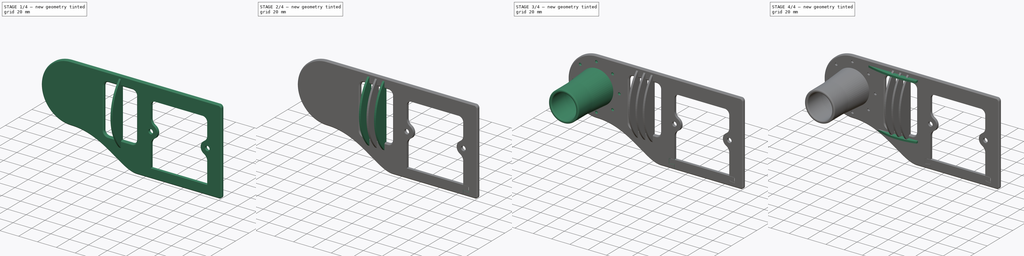
[diagram: build sequence overview — one tinted view per stage of 4, left to right]
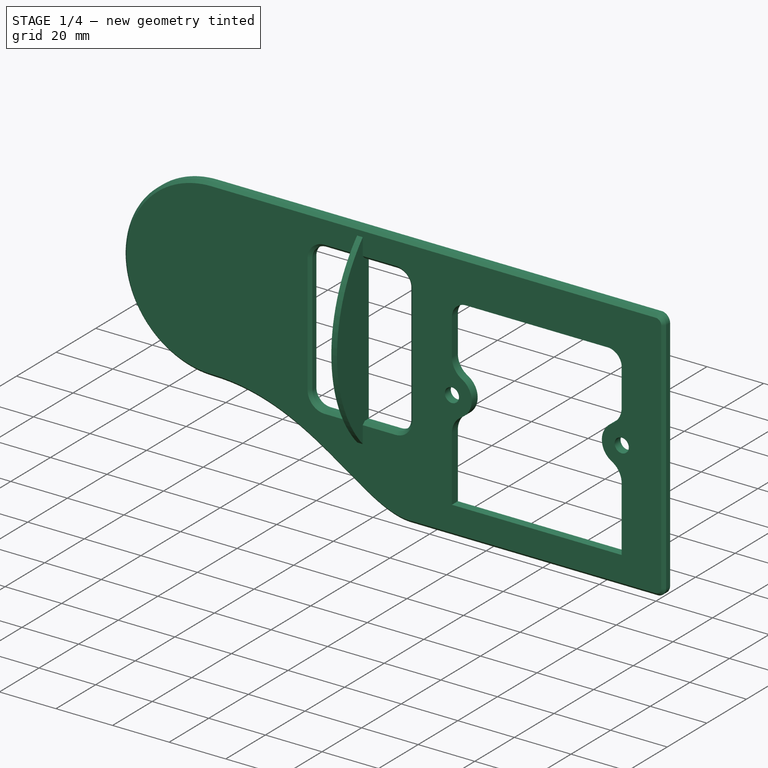
[diagram: stage 1 of 4 — iso view after this stage's code; geometry added in this stage tinted green]
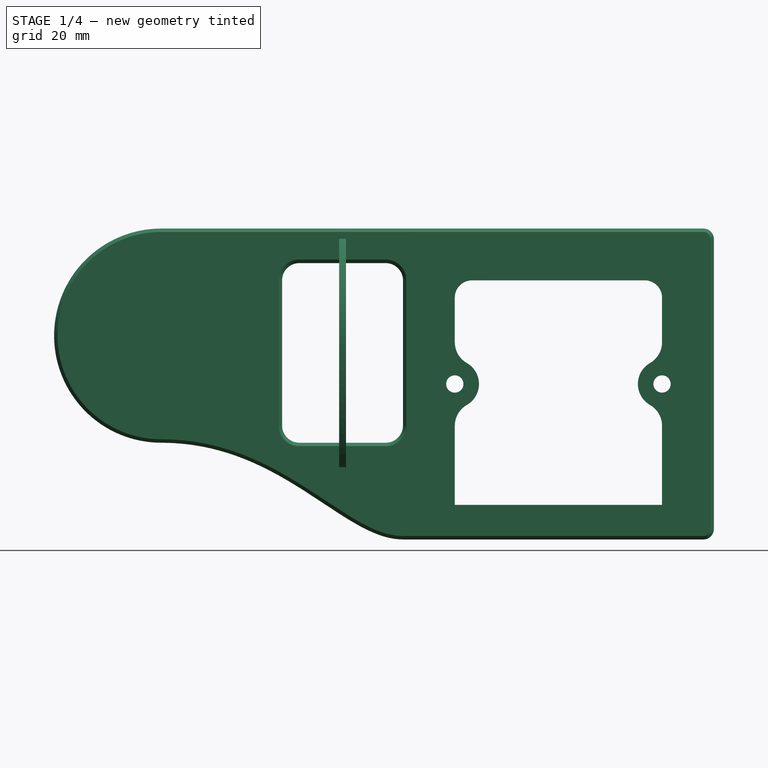
[diagram: stage 1 of 4 — front view after this stage's code; geometry added in this stage tinted green]
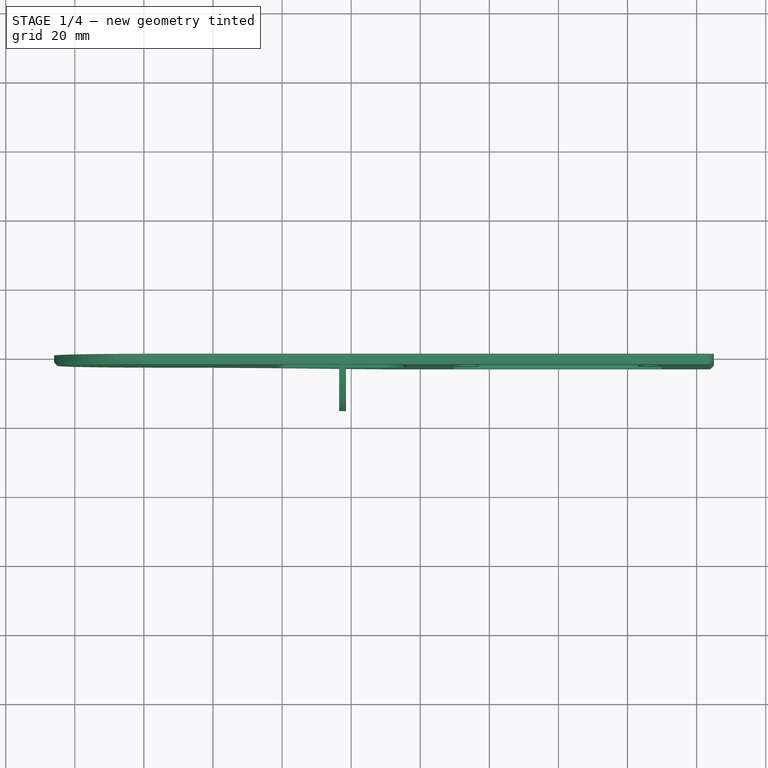
[diagram: stage 1 of 4 — top view after this stage's code; geometry added in this stage tinted green]
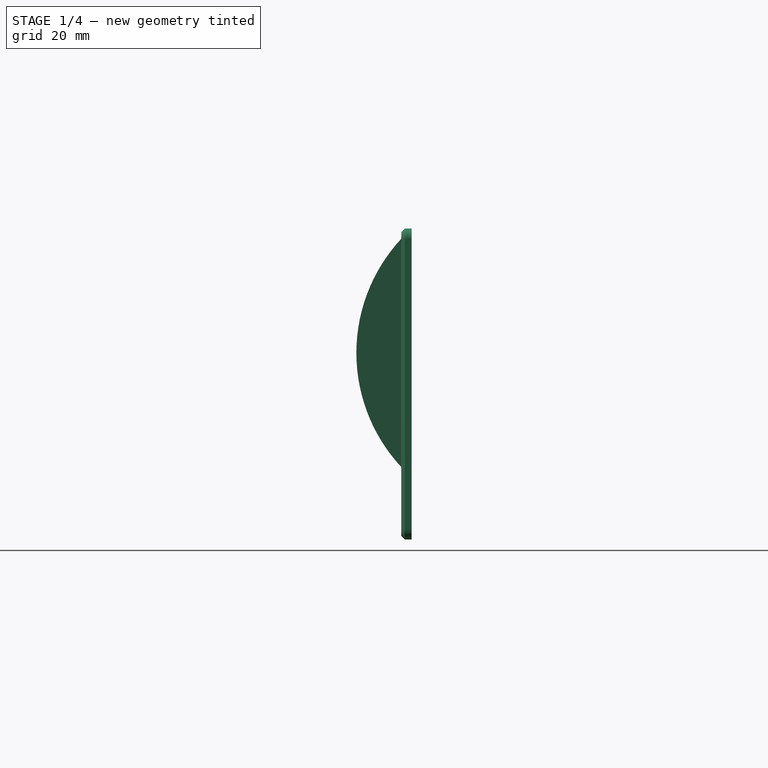
[diagram: stage 1 of 4 — right view after this stage's code; geometry added in this stage tinted green]
FCSTD DOCUMENT  (FreeCAD 1.0R39109 (Git))
Label: dyson mount wall socket 86 2
License: All rights reserved
LicenseURL: http://en.wikipedia.org/wiki/All_rights_reserved
objects: Sketcher::SketchObject×9, PartDesign::Pad×4, PartDesign::Pocket×4, PartDesign::LinearPattern×2, App::VarSet×1, PartDesign::Chamfer×1, PartDesign::Mirrored×1, PartDesign::Line×1, PartDesign::Revolution×1, PartDesign::Body×1
note: 56 computed .brp shape members not serialized (recipe doc carries the construction recipe); baked Part::Feature solids carry a one-line shape summary decoded from their .brp

FEATURE [Sketcher::SketchObject] Sketch
  ArcFitTolerance = 1e-06
  AttachmentSupport = -> [XZ_Plane]
  FullyConstrained = true
  MakeInternals = false
  MapMode = 5
  Placement = pos=(0,0,0) rot=(1,0,0;1.5708rad)
  expr: Constraints[2] = <<Specs>>.BoxSize + <<Specs>>.Padding
  expr: Constraints[43] = <<Specs>>.BoxSize + <<Specs>>.Padding
  expr: Constraints[9] = <<Specs>>.MountOffset
  sketch-geometry (58):
    g0: LineSegment [constr] StartX=-45 StartY=45 StartZ=0 EndX=-45 EndY=-45 EndZ=0
    g1: LineSegment StartX=45 StartY=-42 StartZ=0 EndX=45 EndY=42 EndZ=0
    g2: LineSegment StartX=42 StartY=45 StartZ=0 EndX=-45 EndY=45 EndZ=0
    g3: Circle CenterX=-30 CenterY=-2e-16 CenterZ=0 NormalX=0 NormalY=0 NormalZ=1 AngleXU=0 Radius=2.5
    g4: Circle CenterX=30 CenterY=0 CenterZ=0 NormalX=0 NormalY=0 NormalZ=1 AngleXU=0 Radius=2.5
    g5: LineSegment StartX=-30 StartY=-12.1244 StartZ=0 EndX=-30 EndY=-35 EndZ=0
    g6: LineSegment StartX=-30 StartY=25 StartZ=0 EndX=-30 EndY=12.1244 EndZ=0
    g7: LineSegment StartX=30 StartY=12.1244 StartZ=0 EndX=30 EndY=25 EndZ=0
    g8: LineSegment StartX=25 StartY=30 StartZ=0 EndX=-25 EndY=30 EndZ=0
    g9: ArcOfCircle CenterX=-30 CenterY=-2e-16 CenterZ=0 NormalX=0 NormalY=0 NormalZ=1 AngleXU=0 Radius=7 StartAngle=5.23599 EndAngle=7.33038
    g10: ArcOfCircle CenterX=30 CenterY=0 CenterZ=0 NormalX=0 NormalY=0 NormalZ=1 AngleXU=0 Radius=7 StartAngle=2.0944 EndAngle=4.18879
    g11: ArcOfCircle CenterX=-23 CenterY=-12.1244 CenterZ=0 NormalX=0 NormalY=0 NormalZ=1 AngleXU=0 Radius=7 StartAngle=2.0944 EndAngle=3.14159
    g12: ArcOfCircle CenterX=-23 CenterY=12.1244 CenterZ=0 NormalX=0 NormalY=0 NormalZ=1 AngleXU=0 Radius=7 StartAngle=3.14159 EndAngle=4.18879
    g13: ArcOfCircle CenterX=23 CenterY=12.1244 CenterZ=0 NormalX=0 NormalY=0 NormalZ=1 AngleXU=0 Radius=7 StartAngle=5.23599 EndAngle=6.28319
    g14: ArcOfCircle CenterX=23 CenterY=-12.1244 CenterZ=0 NormalX=0 NormalY=0 NormalZ=1 AngleXU=0 Radius=7 StartAngle=0 EndAngle=1.0472
    g15: GeomPoint [constr] X=45 Y=45 Z=0
    g16: GeomPoint [constr] X=45 Y=-45 Z=0
    g17: ArcOfCircle CenterX=-25 CenterY=25 CenterZ=0 NormalX=0 NormalY=0 NormalZ=1 AngleXU=0 Radius=5 StartAngle=1.5708 EndAngle=3.14159
    g18: GeomPoint [constr] X=-30 Y=30 Z=0
    g19: ArcOfCircle CenterX=25 CenterY=25 CenterZ=0 NormalX=0 NormalY=0 NormalZ=1 AngleXU=0 Radius=5 StartAngle=1e-16 EndAngle=1.5708
    g20: GeomPoint [constr] X=30 Y=30 Z=0
    g21: LineSegment [constr] StartX=-80 StartY=45 StartZ=0 EndX=-80 EndY=-45 EndZ=0
    g22: LineSegment [constr] StartX=-115 StartY=14 StartZ=0 EndX=-115 EndY=45 EndZ=0
    g23: LineSegment [constr] StartX=-115 StartY=14 StartZ=0 EndX=-115 EndY=-45 EndZ=0
    g24: ArcOfCircle CenterX=-115 CenterY=14 CenterZ=0 NormalX=0 NormalY=0 NormalZ=1 AngleXU=0 Radius=31 StartAngle=1.5708 EndAngle=4.71239
    g25: LineSegment [constr] StartX=-115 StartY=-17 StartZ=0 EndX=-80 EndY=-17 EndZ=0
    g26: LineSegment [constr] StartX=-115 StartY=-45 StartZ=0 EndX=-80 EndY=-45 EndZ=0
    g27: LineSegment [constr] StartX=-80 StartY=-45 StartZ=0 EndX=-45 EndY=-45 EndZ=0
    g28-g31: Circle [constr] x4 (B-spline internal-alignment scaffolding for g32; pole/knot coordinates omitted)
    g32: BSplineCurve PolesCount=4 KnotsCount=2 Degree=3 IsPeriodic=0
    g33: GeomPoint [constr] X=-115 Y=-17 Z=0
    g34: GeomPoint [constr] X=-45 Y=-45 Z=0
    g35: LineSegment StartX=-115 StartY=45 StartZ=0 EndX=-45 EndY=45 EndZ=0
    g36: ArcOfCircle CenterX=42 CenterY=42 CenterZ=0 NormalX=0 NormalY=0 NormalZ=1 AngleXU=0 Radius=3 StartAngle=2e-16 EndAngle=1.5708
    g37: GeomPoint [constr] X=45 Y=45 Z=0
    g38: ArcOfCircle CenterX=42 CenterY=-42 CenterZ=0 NormalX=0 NormalY=0 NormalZ=1 AngleXU=0 Radius=3 StartAngle=4.71239 EndAngle=6.28319
    g39: GeomPoint [constr] X=45 Y=-45 Z=0
    g40: LineSegment [constr] StartX=0 StartY=0 StartZ=0 EndX=30 EndY=0 EndZ=0
    g41: LineSegment [constr] StartX=30 StartY=30 StartZ=0 EndX=30 EndY=0 EndZ=0
    g42: LineSegment StartX=-45 StartY=-45 StartZ=0 EndX=42 EndY=-45 EndZ=0
    g43: LineSegment StartX=30 StartY=-35 StartZ=0 EndX=30 EndY=-12.1244 EndZ=0
    g44: GeomPoint X=-30 Y=-35 Z=0
    g45: LineSegment StartX=-30 StartY=-35 StartZ=0 EndX=30 EndY=-35 EndZ=0
    g46: LineSegment StartX=-75 StartY=35 StartZ=0 EndX=-50 EndY=35 EndZ=0
    g47: LineSegment StartX=-80 StartY=30 StartZ=0 EndX=-80 EndY=-12 EndZ=0
    g48: LineSegment StartX=-75 StartY=-17 StartZ=0 EndX=-50 EndY=-17 EndZ=0
    g49: LineSegment StartX=-45 StartY=-12 StartZ=0 EndX=-45 EndY=30 EndZ=0
    g50: ArcOfCircle CenterX=-75 CenterY=30 CenterZ=0 NormalX=0 NormalY=0 NormalZ=1 AngleXU=0 Radius=5 StartAngle=1.5708 EndAngle=3.14159
    g51: GeomPoint [constr] X=-80 Y=35 Z=0
    g52: ArcOfCircle CenterX=-50 CenterY=30 CenterZ=0 NormalX=0 NormalY=0 NormalZ=1 AngleXU=0 Radius=5 StartAngle=3.75e-14 EndAngle=1.5708
    g53: GeomPoint [constr] X=-45 Y=35 Z=0
    g54: ArcOfCircle CenterX=-75 CenterY=-12 CenterZ=0 NormalX=0 NormalY=0 NormalZ=1 AngleXU=0 Radius=5 StartAngle=3.14159 EndAngle=4.71239
    g55: GeomPoint [constr] X=-80 Y=-17 Z=0
    g56: ArcOfCircle CenterX=-50 CenterY=-12 CenterZ=0 NormalX=0 NormalY=0 NormalZ=1 AngleXU=0 Radius=5 StartAngle=4.71239 EndAngle=6.28319
    g57: GeomPoint [constr] X=-45 Y=-17 Z=0
  constraints (128):
    c: Coincident(g2,g0)
    c: Vertical(g1)
    c: Distance(g0,g15) = 90
    c: Symmetric(g0,g15,g-2)
    c: Symmetric(g0,g0,g-1)
    c: Diameter(g3) = 5
    c: Symmetric(g4,g3,g-2)
    c: Equal(g3,g4)
    c: DistanceX(g3,g4) = 60
    c: DistanceX(g22,g0) = 70
    c: Vertical(g5)
    c: PointOnObject(g3,g5)
    c: Vertical(g6)
    c: Horizontal(g8)
    c: Coincident(g9,g3)
    c: PointOnObject(g10,g43)
    c: Tangent(g9,g11) = 1.5708
    c: Tangent(g5,g11) = -1.5708
    c: Tangent(g9,g12) = 1.5708
    c: Tangent(g6,g12) = -1.5708
    c: Tangent(g10,g13) = 1.5708
    c: Tangent(g7,g13) = -1.5708
    c: Tangent(g10,g14) = 1.5708
    c: Symmetric(g11,g12,g-1)
    c: Vertical(g7)
    c: Equal(g14,g12)
    c: Equal(g12,g11)
    c: Equal(g9,g10)
    c: Symmetric(g14,g13,g-1)
    c: Radius(g9) = 7
    c: Equal(g11,g9)
    c: PointOnObject(g18,g6)
    c: PointOnObject(g18,g8)
    c: Tangent(g6,g17) = -1.5708
    c: Tangent(g8,g17) = -1.5708
    c: PointOnObject(g20,g8)
    c: PointOnObject(g20,g7)
    c: Tangent(g8,g19) = -1.5708
    c: Tangent(g7,g19) = -1.5708
    c: Equal(g17,g19)
    c: Radius(g17) = 5
    c: Symmetric(g22,g0,g21)
    c: Symmetric(g0,g23,g21)
    c: DistanceY(g16,g15) = 90
    c: Coincident(g37,g15)
    c: Coincident(g39,g16)
    c: Vertical(g22)
    c: Coincident(g23,g22)
    c: Vertical(g23)
    c: Coincident(g24,g22)
    c: PointOnObject(g24,g23)
    c: Diameter(g24) = 62
    c: Coincident(g25,g24)
    c: PointOnObject(g25,g21)
    c: Horizontal(g25)
    c: Coincident(g26,g23)
    c: Coincident(g26,g21)
    c: Horizontal(g26)
    c: Coincident(g27,g21)
    c: Coincident(g27,g0)
    c: Weight(g28) = 1
    c: Equal(g28,g29)
    c: Equal(g28,g30)
    c: Equal(g28,g31)
    c: InternalAlignment(g28-g31 -> g32) x4
    c: InternalAlignment(g33,g32)
    c: InternalAlignment(g34,g32)
    c: Coincident(g28,g24)
    c: Coincident(g29,g25)
    c: Symmetric(g27,g27,g30)
    c: Coincident(g31,g0)
    c: Coincident(g35,g22)
    c: Coincident(g35,g0)
    c: Horizontal(g35)
    c: Coincident(g24,g22)
    c: PointOnObject(g37,g2)
    c: PointOnObject(g37,g1)
    c: Tangent(g2,g36) = -1.5708
    c: Tangent(g1,g36) = -1.5708
    c: PointOnObject(g39,g1)
    c: PointOnObject(g39,g42)
    c: Tangent(g1,g38) = -1.5708
    c: Equal(g36,g38)
    c: Radius(g36) = 3
    c: Coincident(g10,g4)
    c: Coincident(g40,g-1)
    c: Coincident(g40,g4)
    c: Coincident(g41,g20)
    c: Coincident(g41,g4)
    c: Equal(g41,g40)
    c: Tangent(g42,g38) = -1.5708
    c: Vertical(g43)
    c: Tangent(g43,g14) = -1.5708
    c: PointOnObject(g44,g5)
    c: Coincident(g45,g44)
    c: Horizontal(g45)
    c: PointOnObject(g5,g45)
    c: Coincident(g43,g45)
    c: Coincident(g42,g32)
    c: Horizontal(g42)
    c: Distance(g5,g42) = 10
    c: PointOnObject(g51,g21)
    c: PointOnObject(g53,g0)
    c: Horizontal(g46)
    c: PointOnObject(g57,g0)
    c: Horizontal(g48)
    c: DistanceY(g51,g21) = 10
    c: Coincident(g55,g25)
    c: PointOnObject(g51,g46)
    c: PointOnObject(g51,g47)
    c: Tangent(g46,g50) = 1.5708
    c: Tangent(g47,g50) = -1.5708
    c: PointOnObject(g53,g46)
    c: PointOnObject(g53,g49)
    c: Tangent(g46,g52) = 1.5708
    c: Tangent(g49,g52) = -1.5708
    c: PointOnObject(g55,g47)
    c: PointOnObject(g55,g48)
    c: Tangent(g47,g54) = -1.5708
    c: Tangent(g48,g54) = -1.5708
    c: PointOnObject(g57,g48)
    c: PointOnObject(g57,g49)
    c: Tangent(g48,g56) = -1.5708
    c: Tangent(g49,g56) = -1.5708
    c: Equal(g50,g54)
    c: Equal(g54,g56)
    c: Equal(g56,g52)
    c: Radius(g50) = 5
FEATURE [PartDesign::Pad] Pad
  Direction = (0,-1,2e-16)
  Length = 3
  Length2 = 10
  Placement = pos=(0,0,0) rot=(1,0,0;1.5708rad)
  Profile = -> Sketch
  ReferenceAxis = -> Sketch [N_Axis]
  Suppressed = false
  Type = 0
FEATURE [App::VarSet] VarSet  label="Specs"
  BoxSize = 86
  MountOffset = 70
  Padding = 4
FEATURE [Sketcher::SketchObject] Sketch004
  ArcFitTolerance = 1e-06
  AttachmentSupport = -> [Pad]
  ExternalGeometry = -> [Sketch]
  FullyConstrained = true
  MakeInternals = false
  MapMode = 5
  Placement = pos=(0,-3,0) rot=(1,0,0;1.5708rad)
  sketch-geometry (18):
    g0: LineSegment [constr] StartX=-90 StartY=14 StartZ=0 EndX=-97.3223 EndY=31.6777 EndZ=0
    g1: LineSegment [constr] StartX=-97.3223 StartY=31.6777 StartZ=0 EndX=-115 EndY=39 EndZ=0
    g2: LineSegment [constr] StartX=-115 StartY=39 StartZ=0 EndX=-132.678 EndY=31.6777 EndZ=0
    g3: LineSegment [constr] StartX=-132.678 StartY=31.6777 StartZ=0 EndX=-140 EndY=14 EndZ=0
    g4: LineSegment [constr] StartX=-140 StartY=14 StartZ=0 EndX=-132.678 EndY=-3.67767 EndZ=0
    g5: LineSegment [constr] StartX=-132.678 StartY=-3.67767 StartZ=0 EndX=-115 EndY=-11 EndZ=0
    g6: LineSegment [constr] StartX=-115 StartY=-11 StartZ=0 EndX=-97.3223 EndY=-3.67767 EndZ=0
    g7: LineSegment [constr] StartX=-97.3223 StartY=-3.67767 StartZ=0 EndX=-90 EndY=14 EndZ=0
    g8: Circle [constr] CenterX=-115 CenterY=14 CenterZ=0 NormalX=0 NormalY=0 NormalZ=1 AngleXU=0 Radius=25
    g9: Circle CenterX=-97.3223 CenterY=31.6777 CenterZ=0 NormalX=0 NormalY=0 NormalZ=1 AngleXU=0 Radius=1.45
    g10: Circle CenterX=-115 CenterY=39 CenterZ=0 NormalX=0 NormalY=0 NormalZ=1 AngleXU=0 Radius=1.45
    g11: Circle CenterX=-132.678 CenterY=31.6777 CenterZ=0 NormalX=0 NormalY=0 NormalZ=1 AngleXU=0 Radius=1.45
    g12: Circle CenterX=-140 CenterY=14 CenterZ=0 NormalX=0 NormalY=0 NormalZ=1 AngleXU=0 Radius=1.45
    g13: Circle CenterX=-132.678 CenterY=-3.67767 CenterZ=0 NormalX=0 NormalY=0 NormalZ=1 AngleXU=0 Radius=1.45
    g14: Circle CenterX=-115 CenterY=-11 CenterZ=0 NormalX=0 NormalY=0 NormalZ=1 AngleXU=0 Radius=1.45
    g15: Circle CenterX=-97.3223 CenterY=-3.67767 CenterZ=0 NormalX=0 NormalY=0 NormalZ=1 AngleXU=0 Radius=1.45
    g16: Circle CenterX=-90 CenterY=14 CenterZ=0 NormalX=0 NormalY=0 NormalZ=1 AngleXU=0 Radius=1.45
    g17: LineSegment [constr] StartX=-115 StartY=14 StartZ=0 EndX=-90 EndY=14 EndZ=0
  constraints (38):
    c: Coincident(g0,g1)
    c: Coincident(g1,g2)
    c: Coincident(g2,g3)
    c: Coincident(g3,g4)
    c: Coincident(g4,g5)
    c: Coincident(g5,g6)
    c: Coincident(g6,g7)
    c: Coincident(g7,g0)
    c: Equal(g0, g1-g7) x7
    c: PointOnObject(g0,g8)
    c: PointOnObject(g1,g8)
    c: PointOnObject(g2,g8)
    c: PointOnObject(g3,g8)
    c: PointOnObject(g4,g8)
    c: PointOnObject(g5,g8)
    c: PointOnObject(g6,g8)
    c: PointOnObject(g7,g8)
    c: Radius(g8) = 25
    c: Coincident(g9,g0)
    c: Coincident(g10,g1)
    c: Coincident(g11,g2)
    c: Coincident(g12,g3)
    c: Coincident(g13,g4)
    c: Coincident(g14,g5)
    c: Coincident(g15,g6)
    c: Coincident(g16,g0)
    c: Coincident(g17,g8)
    c: Coincident(g17,g0)
    c: Horizontal(g17)
    c: Equal(g10,g11)
    c: Equal(g11,g12)
    c: Equal(g12,g13)
    c: Equal(g13,g14)
    c: Equal(g14,g15)
    c: Equal(g15,g16)
    c: Equal(g16,g9)
    c: Diameter(g16) = 2.9
    c: Coincident(g8,g-3)
FEATURE [Sketcher::SketchObject] Sketch005
  ArcFitTolerance = 1e-06
  AttachmentSupport = -> [Pad]
  ExternalGeometry = -> [Pad]
  FullyConstrained = true
  MakeInternals = false
  MapMode = 5
  Placement = pos=(0,-3,0) rot=(1,0,0;1.5708rad)
  sketch-geometry (11):
    g0: LineSegment StartX=30 StartY=-35 StartZ=0 EndX=35.6141 EndY=-35 EndZ=0
    g1: LineSegment StartX=35.6141 StartY=-35 StartZ=0 EndX=35.6141 EndY=-40.6141 EndZ=0
    g2: LineSegment StartX=35.6141 StartY=-40.6141 StartZ=0 EndX=30 EndY=-39.6242 EndZ=0
    g3: LineSegment StartX=30 StartY=-39.6242 StartZ=0 EndX=30 EndY=-45 EndZ=0
    g4: LineSegment StartX=30 StartY=-45 StartZ=0 EndX=29.8 EndY=-45 EndZ=0
    g5: LineSegment StartX=29.8 StartY=-45 StartZ=0 EndX=29.8 EndY=-39.3859 EndZ=0
    g6: LineSegment StartX=29.8 StartY=-39.3859 StartZ=0 EndX=35.8141 EndY=-40.4463 EndZ=0
    g7: LineSegment StartX=35.8141 StartY=-40.4463 StartZ=0 EndX=35.8141 EndY=-35.2 EndZ=0
    g8: LineSegment StartX=35.8141 StartY=-35.2 StartZ=0 EndX=29.8 EndY=-35.2 EndZ=0
    g9: LineSegment StartX=29.8 StartY=-35.2 StartZ=0 EndX=29.8 EndY=-35 EndZ=0
    g10: LineSegment StartX=29.8 StartY=-35 StartZ=0 EndX=30 EndY=-35 EndZ=0
  constraints (32):
    c: Coincident(g-3,g0)
    c: Coincident(g0,g1)
    c: Vertical(g1)
    c: Coincident(g1,g2)
    c: Coincident(g2,g3)
    c: PointOnObject(g3,g-4)
    c: Vertical(g3)
    c: Coincident(g3,g4)
    c: Coincident(g4,g5)
    c: Vertical(g5)
    c: Coincident(g5,g6)
    c: Coincident(g6,g7)
    c: Vertical(g7)
    c: Coincident(g7,g8)
    c: Coincident(g8,g9)
    c: PointOnObject(g9,g-3)
    c: Coincident(g9,g10)
    c: Coincident(g10,g0)
    c: Parallel(g0,g8)
    c: Parallel(g6,g2)
    c: PointOnObject(g4,g-4)
    c: Vertical(g9)
    c: Vertical(g8,g5)
    c: Vertical(g0,g2)
    c: Distance(g7,g0) = 0.2
    c: Distance(g7,g1) = 0.2
    c: Distance(g6,g2) = 0.2
    c: Distance(g10,g10) = 0.2
    c: Horizontal(g0)
    c: Angle(g7,g6) = 1.39626
    c: Equal(g1,g5)
    c: Equal(g1,g0)
FEATURE [PartDesign::Chamfer] Chamfer
  Angle = 45
  Base = -> Pad [Edge4,Edge73]
  BaseFeature = -> Pad
  ChamferType = 0
  FlipDirection = false
  Placement = pos=(0,0,0) rot=(1,0,0;1.5708rad)
  Size = 1
  Size2 = 1
  SupportTransform = false
  Suppressed = false
  UseAllEdges = false
FEATURE [Sketcher::SketchObject] Sketch006
  ArcFitTolerance = 1e-06
  AttachmentOffset = pos=(0,0,-62.5) rot=(0,0,1;0rad)
  AttachmentSupport = -> [YZ_Plane]
  ExternalGeometry = -> [Sketch]
  FullyConstrained = true
  MakeInternals = false
  MapMode = 5
  Placement = pos=(-62.5,0,0) rot=(0.57735,0.57735,0.57735;2.0944rad)
  expr: .AttachmentOffset.Base.z = (<<Specs>>.BoxSize + <<Specs>>.Padding) / -2 + <<Specs>>.MountOffset / -4
  sketch-geometry (4):
    g0: ArcOfCircle CenterX=32.5 CenterY=9 CenterZ=0 NormalX=0 NormalY=0 NormalZ=1 AngleXU=0 Radius=48.5 StartAngle=2.30514 EndAngle=3.97804
    g1: LineSegment StartX=5.613e-13 StartY=45 StartZ=0 EndX=5.684e-13 EndY=-27 EndZ=0
    g2: LineSegment [constr] StartX=5.613e-13 StartY=45 StartZ=0 EndX=7.8e-15 EndY=35 EndZ=0
    g3: LineSegment [constr] StartX=-3.8e-15 StartY=-17 StartZ=0 EndX=5.684e-13 EndY=-27 EndZ=0
  constraints (11):
    c: PointOnObject(g0,g-2)
    c: PointOnObject(g0,g-2)
    c: Coincident(g1,g0)
    c: Coincident(g1,g0)
    c: Coincident(g2,g0)
    c: Coincident(g2,g-3)
    c: Coincident(g3,g-4)
    c: Coincident(g3,g0)
    c: Equal(g2,g3)
    c: DistanceY(g2,g2) = 10
    c: Distance(g0,g-2) = -16
FEATURE [PartDesign::Pad] Pad002
  BaseFeature = -> Chamfer
  Direction = (1,0,0)
  Length = 2
  Length2 = 10
  Midplane = true
  Placement = pos=(0,0,0) rot=(1,0,0;1.5708rad)
  Profile = -> Sketch006
  ReferenceAxis = -> Sketch006 [N_Axis]
  Suppressed = false
  Type = 0
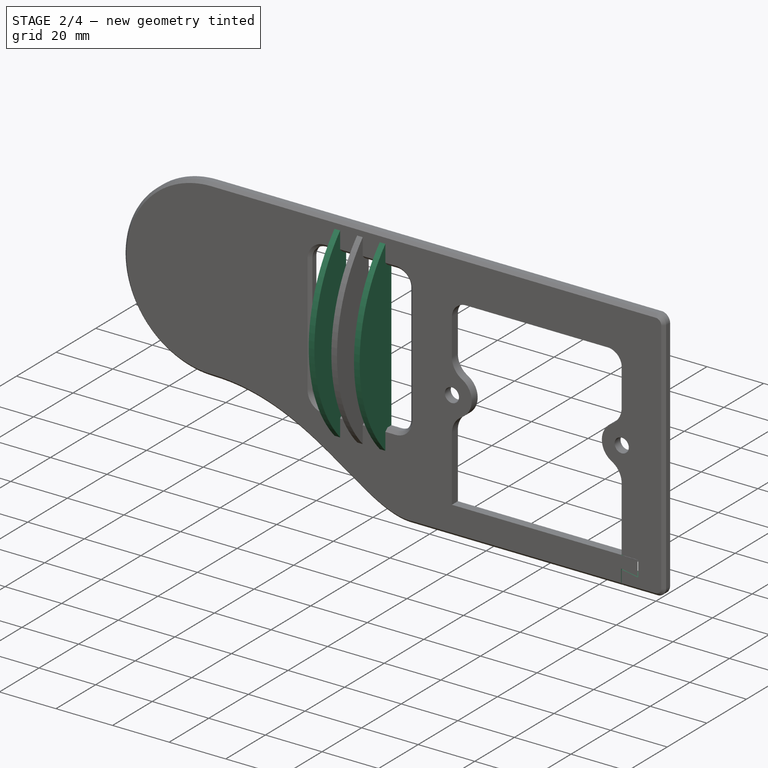
[diagram: stage 2 of 4 — iso view after this stage's code; geometry added in this stage tinted green]
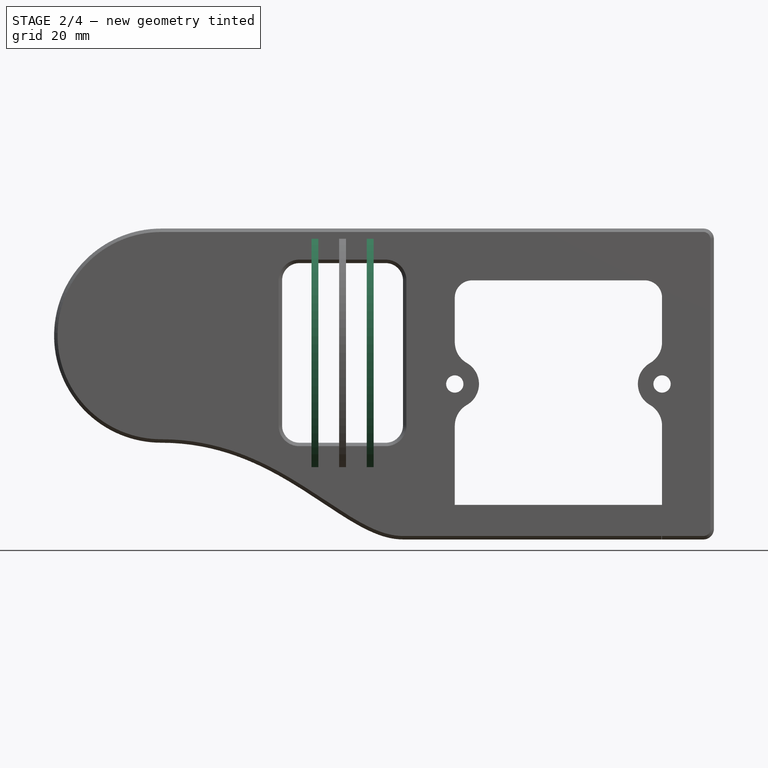
[diagram: stage 2 of 4 — front view after this stage's code; geometry added in this stage tinted green]
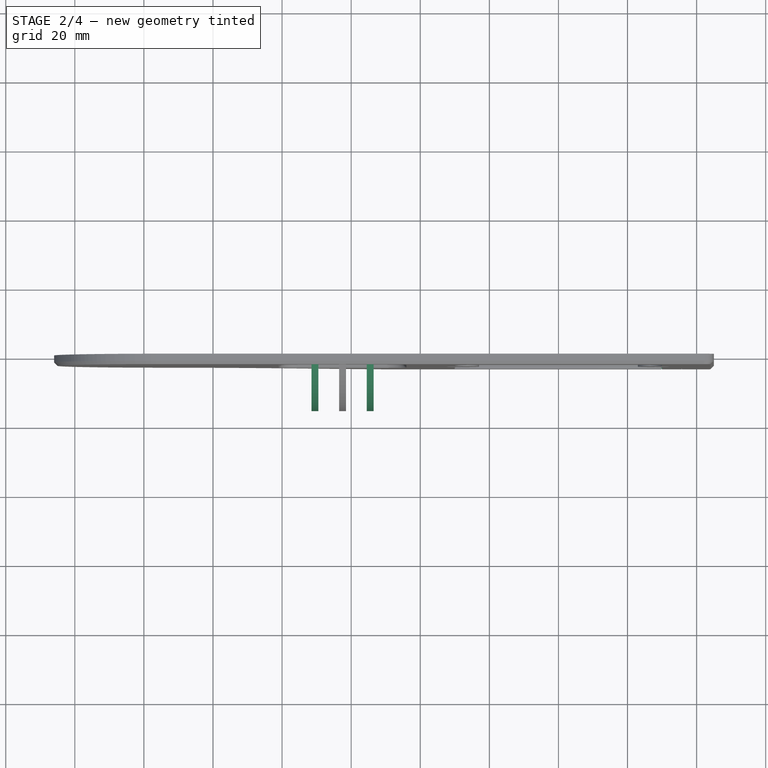
[diagram: stage 2 of 4 — top view after this stage's code; geometry added in this stage tinted green]
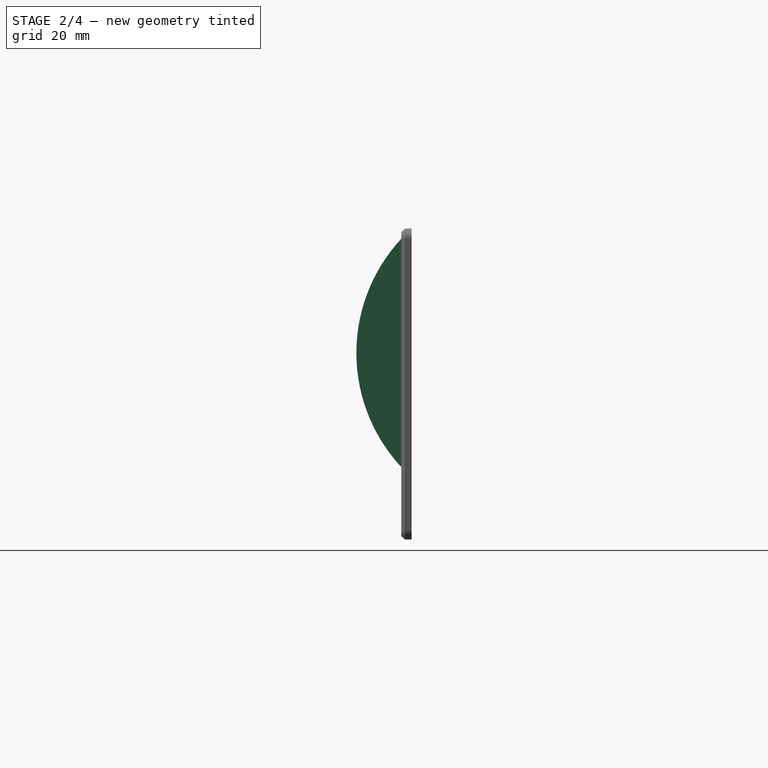
[diagram: stage 2 of 4 — right view after this stage's code; geometry added in this stage tinted green]
FEATURE [PartDesign::LinearPattern] LinearPattern
  BaseFeature = -> Pad002
  Direction = -> Sketch006 [N_Axis]
  Length = 8
  Mode = 1
  Occurrences = 2
  Offset = 8
  Originals = -> [Pad002]
  Placement = pos=(0,0,0) rot=(1,0,0;1.5708rad)
  Suppressed = false
  TransformMode = 0
FEATURE [PartDesign::LinearPattern] LinearPattern001
  BaseFeature = -> LinearPattern
  Direction = -> Sketch006 [N_Axis]
  Length = 8
  Mode = 0
  Occurrences = 2
  Offset = 8
  Originals = -> [Pad002]
  Placement = pos=(0,0,0) rot=(1,0,0;1.5708rad)
  Reversed = true
  Suppressed = false
  TransformMode = 0
FEATURE [PartDesign::Pocket] Pocket002
  BaseFeature = -> LinearPattern001
  Direction = (0,1,-2e-16)
  Length = 5
  Length2 = 5
  Offset = -0.2
  Placement = pos=(0,0,0) rot=(1,0,0;1.5708rad)
  Profile = -> Sketch005
  ReferenceAxis = -> Sketch005 [N_Axis]
  Suppressed = false
  Type = 2
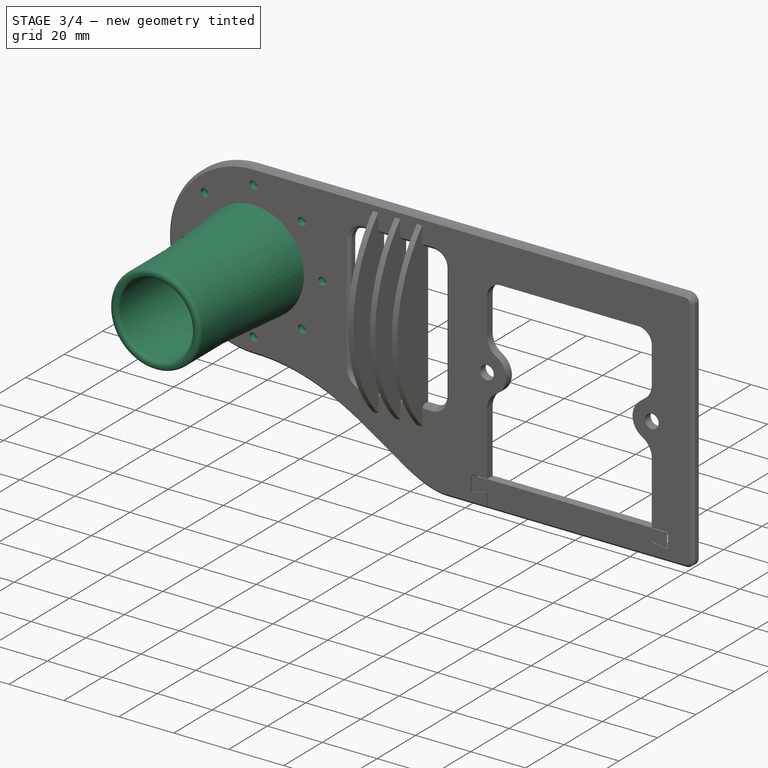
[diagram: stage 3 of 4 — iso view after this stage's code; geometry added in this stage tinted green]
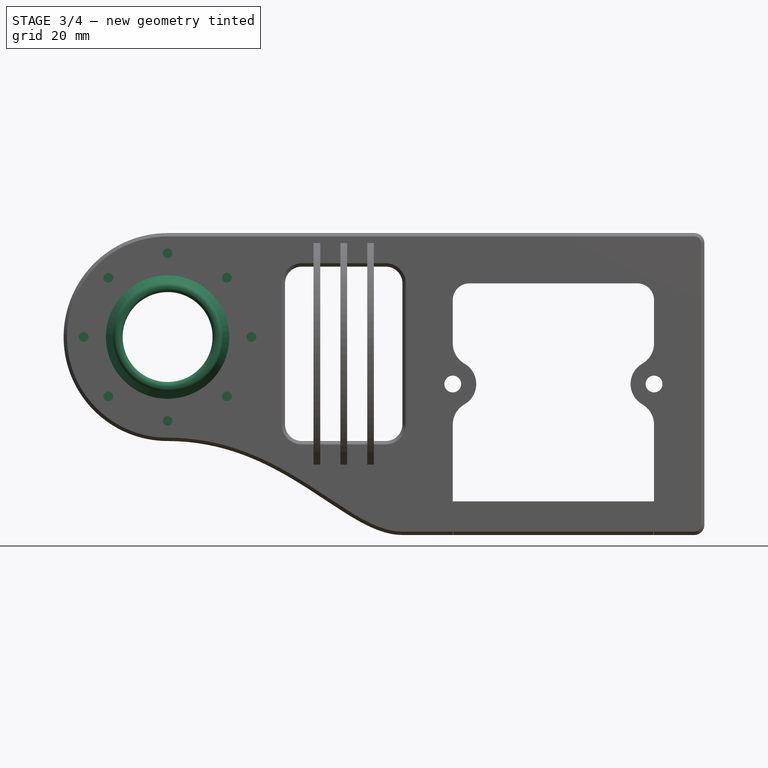
[diagram: stage 3 of 4 — front view after this stage's code; geometry added in this stage tinted green]
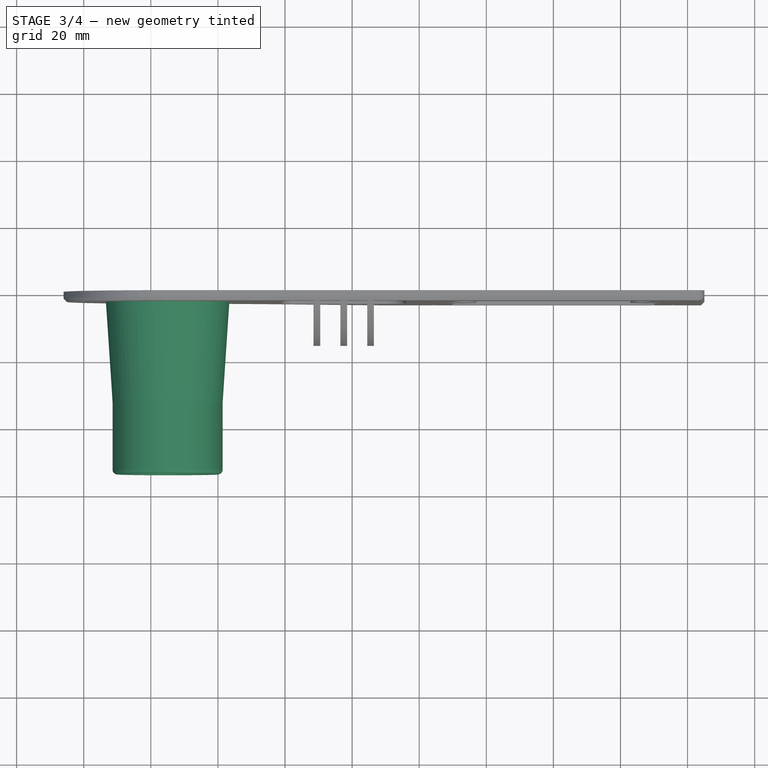
[diagram: stage 3 of 4 — top view after this stage's code; geometry added in this stage tinted green]
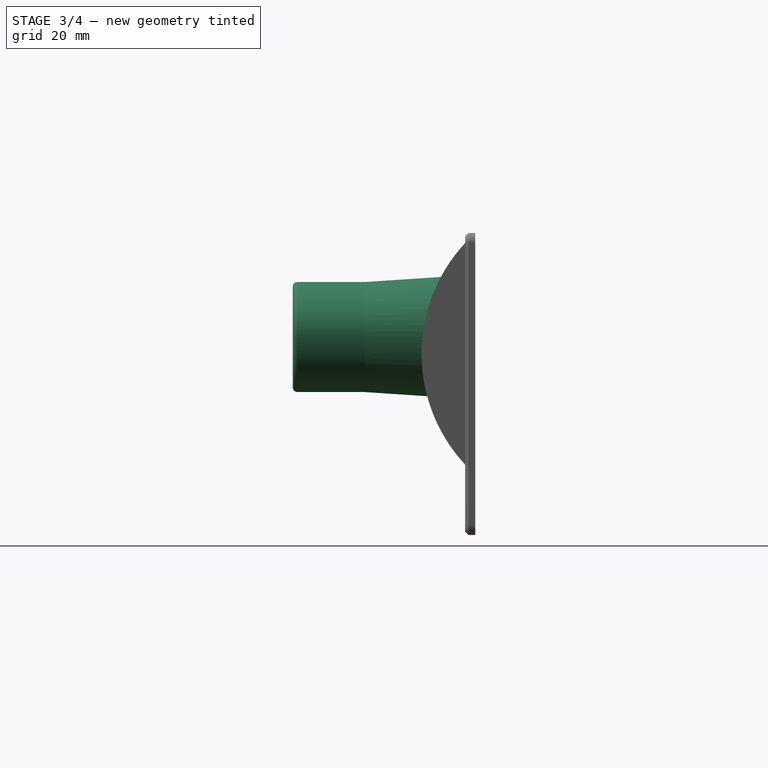
[diagram: stage 3 of 4 — right view after this stage's code; geometry added in this stage tinted green]
FEATURE [PartDesign::Mirrored] Mirrored
  BaseFeature = -> Pocket002
  MirrorPlane = -> Sketch005 [V_Axis]
  Originals = -> [Pocket002]
  Placement = pos=(0,0,0) rot=(1,0,0;1.5708rad)
  Suppressed = false
  TransformMode = 0
FEATURE [PartDesign::Pocket] Pocket001  label="Magnets"
  BaseFeature = -> Mirrored
  Direction = (0,1,-2e-16)
  Length = 2.1
  Length2 = 5
  Placement = pos=(0,0,0) rot=(1,0,0;1.5708rad)
  Profile = -> Sketch004
  ReferenceAxis = -> Sketch004 [N_Axis]
  Suppressed = false
  Type = 0
FEATURE [Sketcher::SketchObject] Sketch007
  ArcFitTolerance = 1e-06
  AttachmentOffset = pos=(-62.5,0,38) rot=(0,0,1;0rad)
  AttachmentSupport = -> [XY_Plane]
  FullyConstrained = true
  MakeInternals = false
  MapMode = 5
  Placement = pos=(-62.5,0,38) rot=(0,0,1;0rad)
  expr: .AttachmentOffset.Base.x = (<<Specs>>.BoxSize + <<Specs>>.Padding) / -2 + <<Specs>>.MountOffset / -4
  expr: .AttachmentOffset.Base.z = <<Specs>>.BoxSize / 2 - 5 mm
  sketch-geometry (5):
    g0: ArcOfCircle CenterX=0 CenterY=117 CenterZ=0 NormalX=0 NormalY=0 NormalZ=1 AngleXU=0 Radius=125 StartAngle=4.42859 EndAngle=4.99618
    g1: GeomPoint X=0 Y=-8 Z=0
    g2: LineSegment StartX=-35 StartY=-3 StartZ=0 EndX=-35 EndY=0 EndZ=0
    g3: LineSegment StartX=35 StartY=-3 StartZ=0 EndX=35 EndY=0 EndZ=0
    g4: LineSegment StartX=-35 StartY=0 StartZ=0 EndX=35 EndY=0 EndZ=0
  constraints (15):
    c: PointOnObject(g0,g-2)
    c: DistanceX(g0,g0) = 70
    c: PointOnObject(g1,g0)
    c: PointOnObject(g1,g-2)
    c: Distance(g1,g-1) = 8
    c: Distance(g0,g-1) = 3
    c: Coincident(g2,g0)
    c: PointOnObject(g2,g-1)
    c: Vertical(g2)
    c: Coincident(g3,g0)
    c: PointOnObject(g3,g-1)
    c: Vertical(g3)
    c: Coincident(g4,g2)
    c: Coincident(g4,g3)
    c: Equal(g2,g3)
FEATURE [Sketcher::SketchObject] Sketch008
  ArcFitTolerance = 1e-06
  AttachmentOffset = pos=(0,0,3) rot=(0,0,1;0rad)
  AttachmentSupport = -> [XZ_Plane]
  FullyConstrained = true
  MakeInternals = false
  MapMode = 5
  Placement = pos=(0,-3,7e-16) rot=(1,0,0;1.5708rad)
  expr: Constraints[10] = <<Specs>>.BoxSize / 2 + 0.5 mm
  expr: Constraints[7] = <<Specs>>.BoxSize
  sketch-geometry (4):
    g0: LineSegment StartX=42.5 StartY=43 StartZ=0 EndX=-43.5 EndY=43 EndZ=0
    g1: LineSegment StartX=-43.5 StartY=43 StartZ=0 EndX=-43.5 EndY=-43 EndZ=0
    g2: LineSegment StartX=-43.5 StartY=-43 StartZ=0 EndX=42.5 EndY=-43 EndZ=0
    g3: LineSegment StartX=42.5 StartY=-43 StartZ=0 EndX=42.5 EndY=43 EndZ=0
  constraints (11):
    c: Coincident(g0,g1)
    c: Coincident(g1,g2)
    c: Coincident(g2,g3)
    c: Coincident(g3,g0)
    c: Horizontal(g0)
    c: Horizontal(g2)
    c: Vertical(g1)
    c: DistanceY(g3,g3) = 86
    c: Equal(g2,g3)
    c: Symmetric(g2,g0,g-1)
    c: Distance(g1,g-2) = 43.5
FEATURE [PartDesign::Line] DatumLine
  AttacherType = Attacher::AttachEngineLine
  AttachmentSupport = -> [Mirrored]
  Length = 20
  MapMode = 19
  Placement = pos=(-115,0,14) rot=(0.57735,-0.57735,0.57735;2.0944rad)
  ResizeMode = 0
FEATURE [Sketcher::SketchObject] Sketch009
  ArcFitTolerance = 1e-06
  AttachmentSupport = -> [DatumLine]
  FullyConstrained = true
  MakeInternals = false
  MapMode = 4
  Placement = pos=(-115,0,14) rot=(0,0,1;3.14159rad)
  sketch-geometry (10):
    g0: LineSegment StartX=-18.4 StartY=3 StartZ=0 EndX=-16.4 EndY=33 EndZ=0
    g1: LineSegment StartX=-16.4 StartY=33 StartZ=0 EndX=-16.4 EndY=53 EndZ=0
    g2: LineSegment StartX=-15 StartY=54.4 StartZ=0 EndX=-14.8 EndY=54.4 EndZ=0
    g3: LineSegment StartX=-13.4 StartY=53 StartZ=0 EndX=-13.4 EndY=32.9001 EndZ=0
    g4: LineSegment StartX=-13.4 StartY=32.9001 StartZ=0 EndX=-15.3933 EndY=3 EndZ=0
    g5: LineSegment StartX=-15.3933 StartY=3 StartZ=0 EndX=-18.4 EndY=3 EndZ=0
    g6: ArcOfCircle CenterX=-15 CenterY=53 CenterZ=0 NormalX=0 NormalY=0 NormalZ=1 AngleXU=0 Radius=1.4 StartAngle=1.5708 EndAngle=3.14159
    g7: GeomPoint [constr] X=-16.4 Y=54.4 Z=0
    g8: ArcOfCircle CenterX=-14.8 CenterY=53 CenterZ=0 NormalX=0 NormalY=0 NormalZ=1 AngleXU=0 Radius=1.4 StartAngle=-9e-16 EndAngle=1.5708
    g9: GeomPoint [constr] X=-13.4 Y=54.4 Z=0
  constraints (26):
    c: Coincident(g0,g1)
    c: Vertical(g1)
    c: Vertical(g3)
    c: Coincident(g3,g4)
    c: Coincident(g4,g5)
    c: Coincident(g5,g0)
    c: Horizontal(g5)
    c: Parallel(g0,g4)
    c: Horizontal(g2)
    c: Distance(g4,g0) = 3
    c: PointOnObject(g7,g2)
    c: PointOnObject(g7,g1)
    c: Tangent(g2,g6) = 1.5708
    c: Tangent(g1,g6) = 1.5708
    c: PointOnObject(g9,g2)
    c: PointOnObject(g9,g3)
    c: Tangent(g2,g8) = 1.5708
    c: Tangent(g3,g8) = 1.5708
    c: Equal(g6,g8)
    c: Radius(g6) = 1.4
    c: Distance(g4,g-1) = 3
    c: DistanceY(g0,g0) = 30
    c: Distance(g0,g-2) = 18.4
    c: Distance(g0,g-2) = 16.4
    c: Distance(g1,g3) = 3
    c: DistanceY(g1,g1) = 20
FEATURE [PartDesign::Revolution] Revolution
  Angle = 360
  Angle2 = 60
  Axis = (0,-1,0)
  Base = (-115,0,14)
  BaseFeature = -> Pocket001
  Placement = pos=(0,0,0) rot=(1,0,0;1.5708rad)
  Profile = -> Sketch009
  ReferenceAxis = -> Sketch009 [V_Axis]
  Suppressed = false
  Type = 0
FEATURE [Sketcher::SketchObject] Sketch010
  ArcFitTolerance = 1e-06
  AttachmentOffset = pos=(-62.5,0,-20) rot=(0,0,1;0rad)
  AttachmentSupport = -> [XY_Plane]
  FullyConstrained = true
  MakeInternals = false
  MapMode = 5
  Placement = pos=(-62.5,0,-20) rot=(0,0,1;0rad)
  expr: .AttachmentOffset.Base.x = (<<Specs>>.BoxSize + <<Specs>>.Padding) / -2 + <<Specs>>.MountOffset / -4
  expr: .AttachmentOffset.Base.z = <<Specs>>.BoxSize / 2 - 63 mm
  sketch-geometry (5):
    g0: ArcOfCircle CenterX=0 CenterY=57 CenterZ=0 NormalX=0 NormalY=0 NormalZ=1 AngleXU=0 Radius=65 StartAngle=4.3176 EndAngle=5.10718
    g1: GeomPoint X=0 Y=-8 Z=0
    g2: LineSegment StartX=-25 StartY=-3 StartZ=0 EndX=-25 EndY=0 EndZ=0
    g3: LineSegment StartX=25 StartY=-3 StartZ=0 EndX=25 EndY=0 EndZ=0
    g4: LineSegment StartX=-25 StartY=0 StartZ=0 EndX=25 EndY=0 EndZ=0
  constraints (15):
    c: PointOnObject(g0,g-2)
    c: DistanceX(g0,g0) = 50
    c: PointOnObject(g1,g0)
    c: PointOnObject(g1,g-2)
    c: Distance(g1,g-1) = 8
    c: Distance(g0,g-1) = 3
    c: Coincident(g2,g0)
    c: PointOnObject(g2,g-1)
    c: Vertical(g2)
    c: Coincident(g3,g0)
    c: PointOnObject(g3,g-1)
    c: Vertical(g3)
    c: Coincident(g4,g2)
    c: Coincident(g4,g3)
    c: Equal(g2,g3)
FEATURE [Sketcher::SketchObject] Sketch011
  ArcFitTolerance = 1e-06
  AttachmentSupport = -> [XZ_Plane]
  ExternalGeometry = -> [Sketch,Sketch009]
  FullyConstrained = true
  MakeInternals = false
  MapMode = 5
  Placement = pos=(0,0,0) rot=(1,0,0;1.5708rad)
  sketch-geometry (1):
    g0: Circle CenterX=-115 CenterY=14 CenterZ=0 NormalX=0 NormalY=0 NormalZ=1 AngleXU=0 Radius=15.3933
  constraints (2):
    c: Coincident(g0,g-3)
    c: PointOnObject(g-4,g0)
FEATURE [PartDesign::Pocket] Pocket003
  BaseFeature = -> Revolution
  Direction = (0,1,-2e-16)
  Length = 3
  Length2 = 5
  Placement = pos=(0,0,0) rot=(1,0,0;1.5708rad)
  Profile = -> Sketch011
  ReferenceAxis = -> Sketch011 [N_Axis]
  Reversed = true
  Suppressed = false
  Type = 0
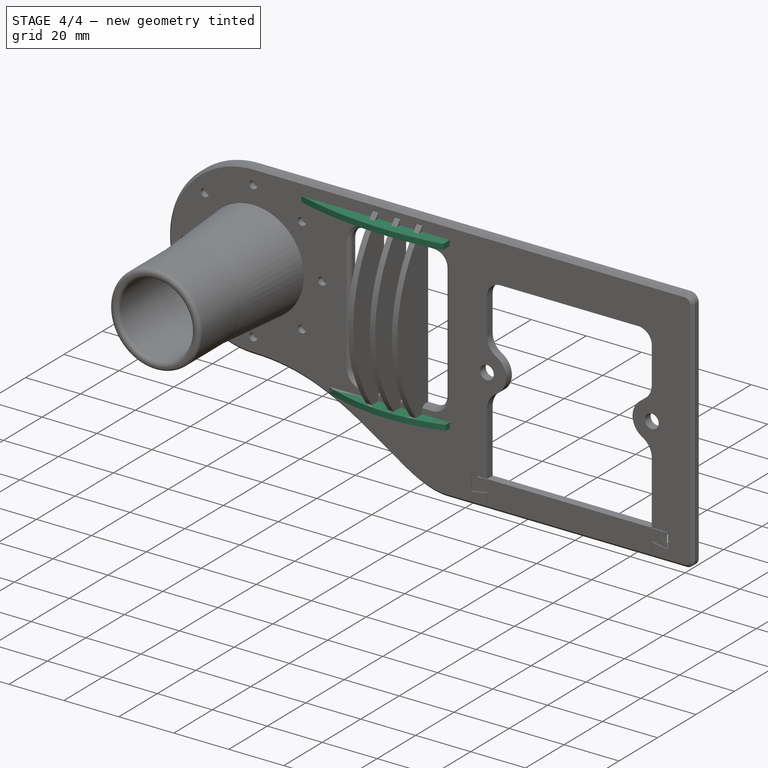
[diagram: stage 4 of 4 — iso view after this stage's code; geometry added in this stage tinted green]
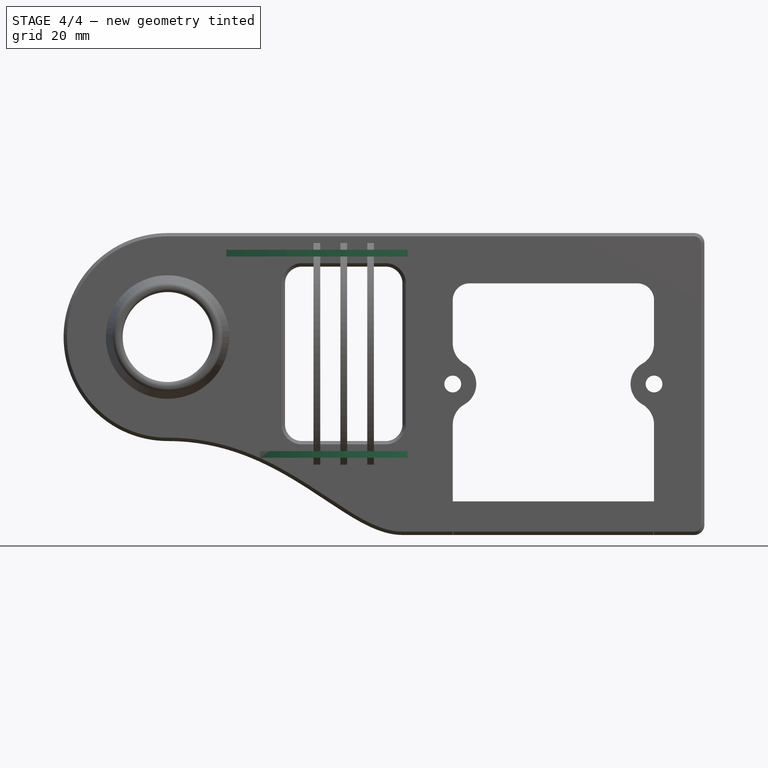
[diagram: stage 4 of 4 — front view after this stage's code; geometry added in this stage tinted green]
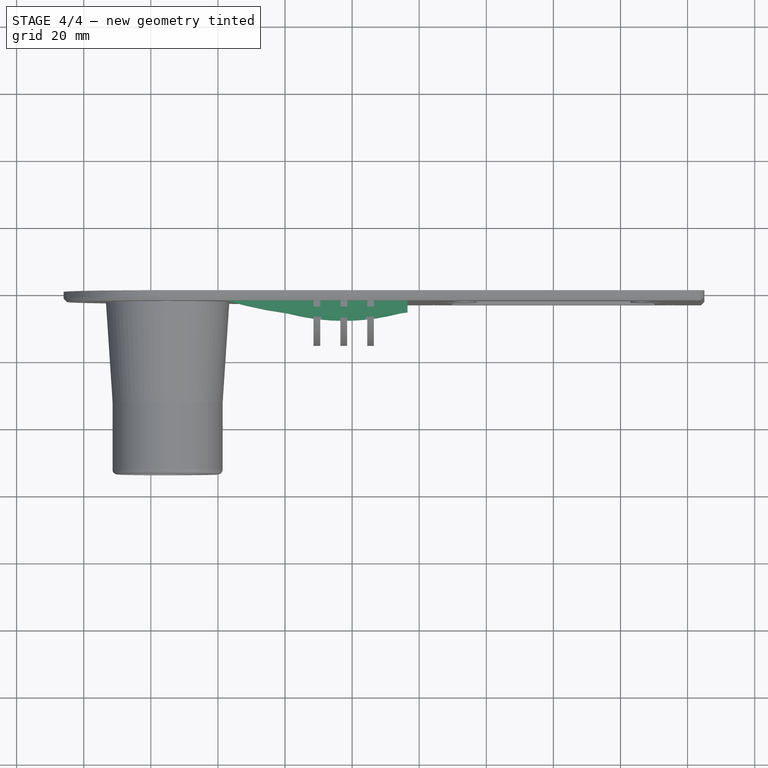
[diagram: stage 4 of 4 — top view after this stage's code; geometry added in this stage tinted green]
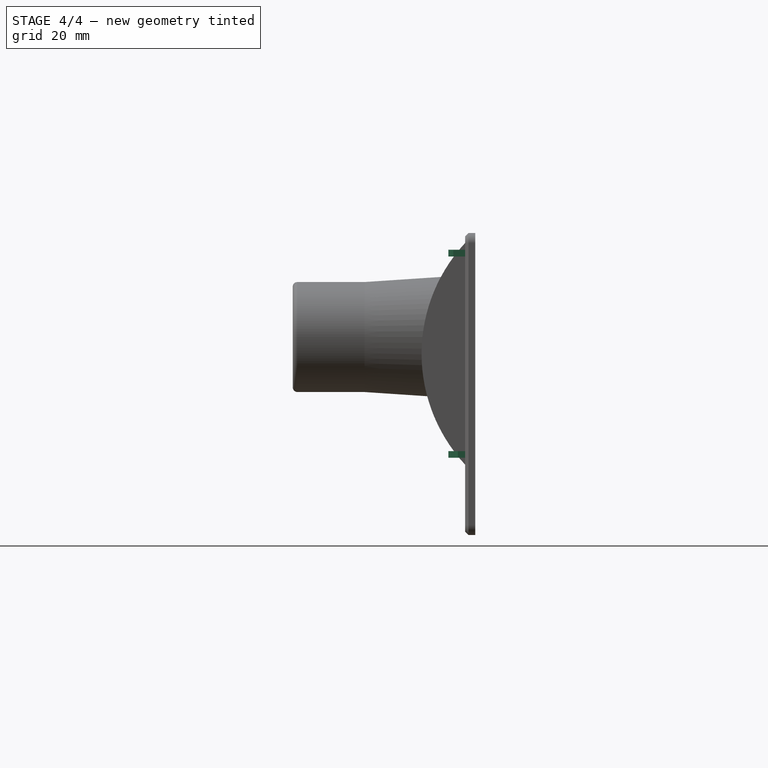
[diagram: stage 4 of 4 — right view after this stage's code; geometry added in this stage tinted green]
FEATURE [PartDesign::Pad] Pad003
  BaseFeature = -> Pocket003
  Direction = (0,0,1)
  Length = 2
  Length2 = 10
  Placement = pos=(0,0,0) rot=(1,0,0;1.5708rad)
  Profile = -> Sketch007
  ReferenceAxis = -> Sketch007 [N_Axis]
  Suppressed = false
  Type = 0
FEATURE [PartDesign::Pad] Pad004
  BaseFeature = -> Pad003
  Direction = (0,0,1)
  Length = 2
  Length2 = 10
  Placement = pos=(0,0,0) rot=(1,0,0;1.5708rad)
  Profile = -> Sketch010
  ReferenceAxis = -> Sketch010 [N_Axis]
  Reversed = true
  Suppressed = false
  Type = 0
FEATURE [PartDesign::Pocket] Pocket
  BaseFeature = -> Pad004
  Direction = (0,1,-2e-16)
  Length = 5
  Length2 = 5
  Placement = pos=(0,0,0) rot=(1,0,0;1.5708rad)
  Profile = -> Sketch008
  ReferenceAxis = -> Sketch008 [N_Axis]
  Refine = true
  Reversed = true
  Suppressed = false
  Type = 0
FEATURE [PartDesign::Body] Body
  AllowCompound = false
  Group = -> [Sketch,Pad,DatumLine,Chamfer,Pad002,LinearPattern,LinearPattern001,Pocket002,Mirrored,Pocket001,Revolution,Pocket003,Pad003,Pad004,Sketch009,Sketch004,Sketch005,Sketch006,Sketch007,Sketch008,Sketch010,Pocket,Sketch011]
  Origin = -> Origin
  Tip = -> Pocket
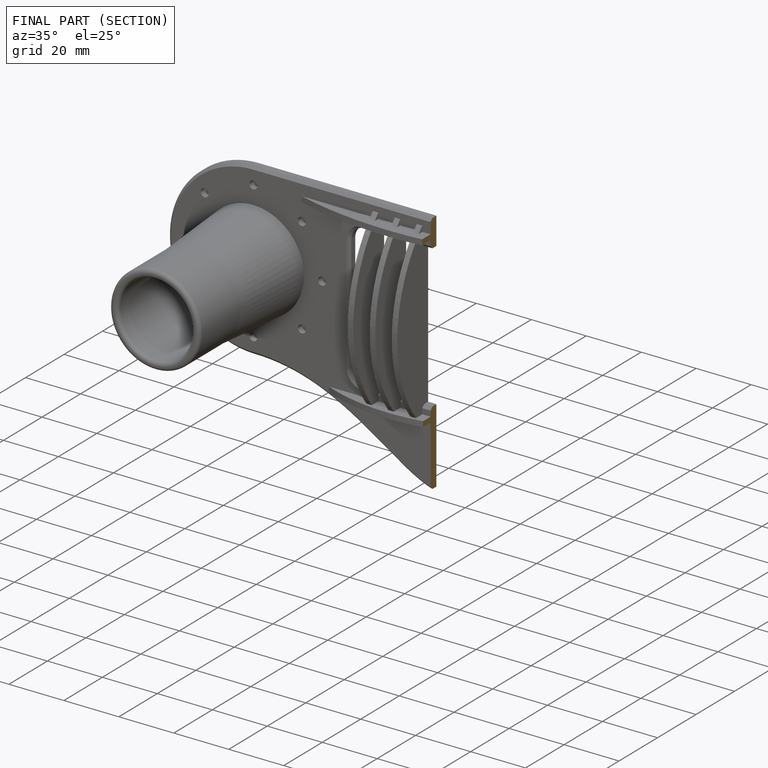
[diagram: finished part — half-section view (interior)]
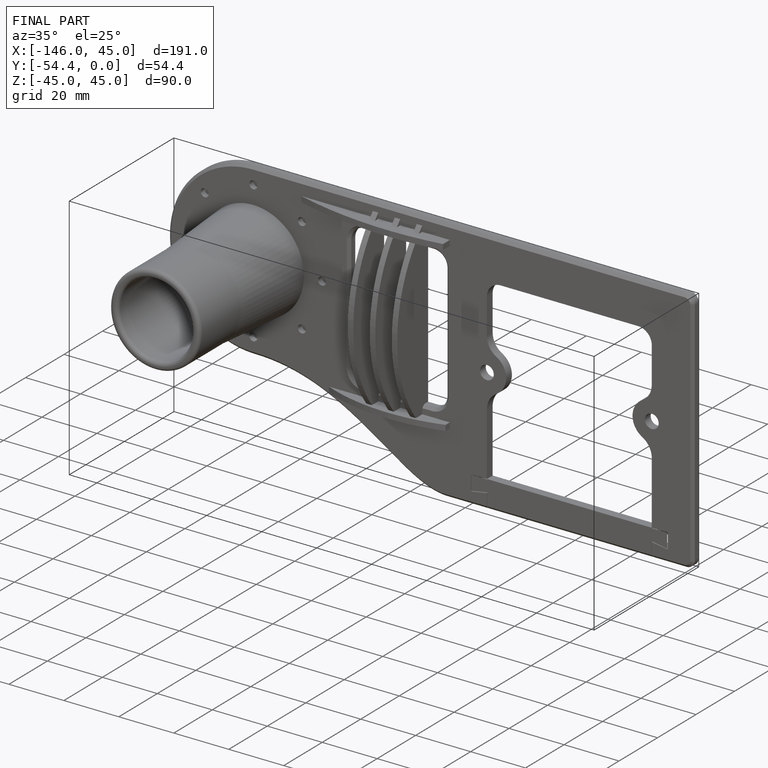
[diagram: finished part — iso view with bounding-box wireframe]
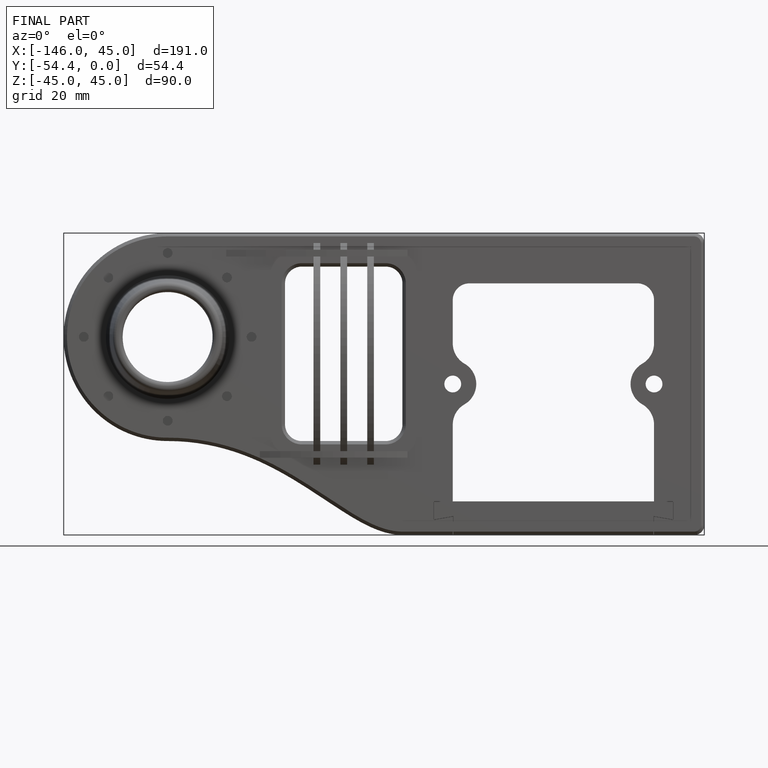
[diagram: finished part — front view with bounding-box wireframe]
